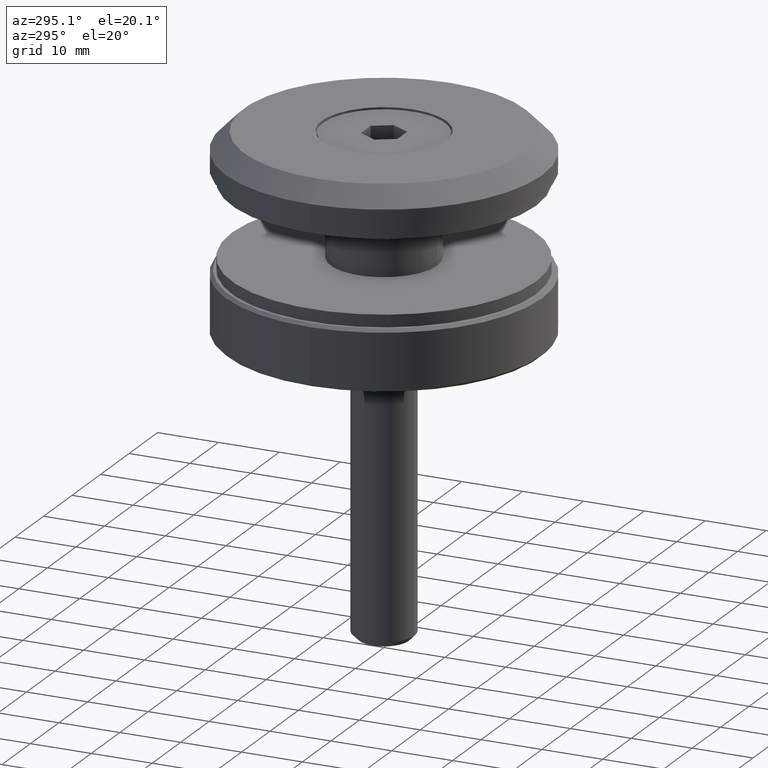
[diagram: clean part render]
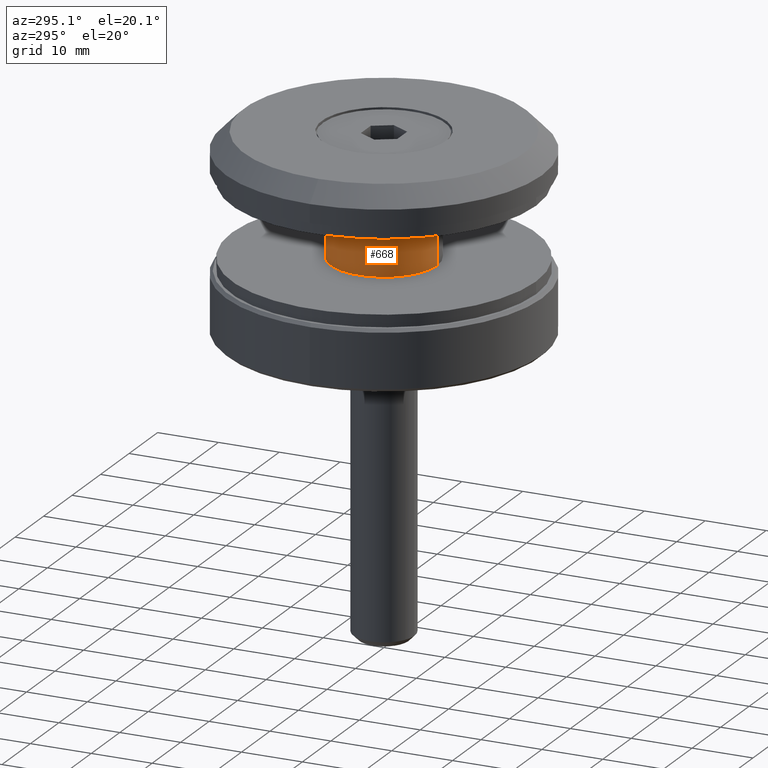
[diagram: same view with one face highlighted and labeled with its STEP entity id]
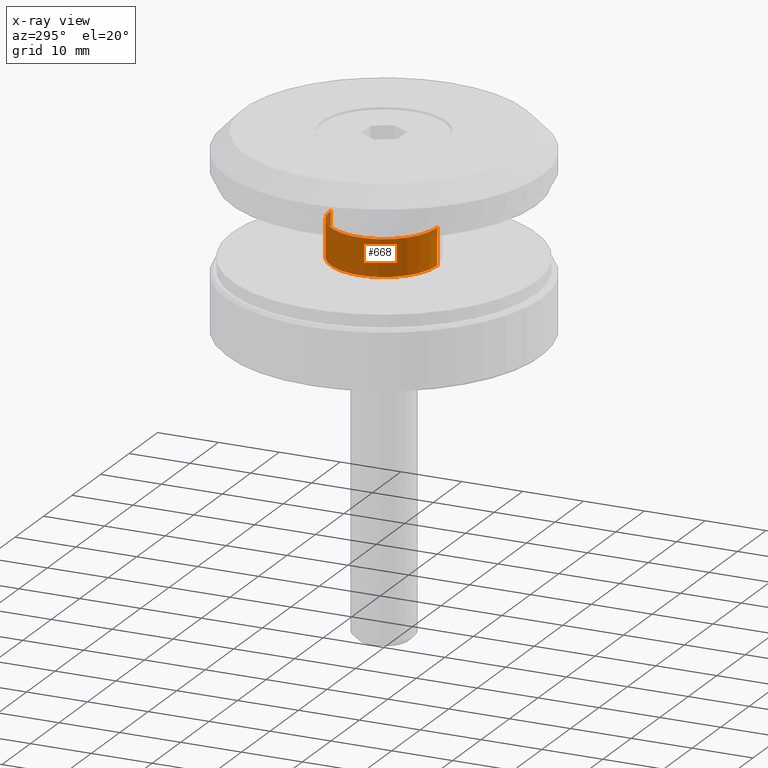
[diagram: x-ray of the same camera — body ghosted, the highlighted face saturated]
A machine part, auxiliary view. The second image highlights one B-rep face of the part: STEP entity #668.
The next image is the same camera in x-ray: the body ghosted, the highlighted face saturated — about 8% of this face is hidden behind the body in this view.
In plain terms, the highlighted cylindrical surface (partial cylindrical patch) has radius 8.75 mm, axis along (0, 0, -1).
Its self-contained STEP definition (entity closure, byte-faithful):
#668 = ADVANCED_FACE ( 'NONE', ( #8071 ), #12903, .T. ) ;
#748 = CIRCLE ( 'NONE', #14429, 8.750000000000001776 ) ;
#807 = CIRCLE ( 'NONE', #14029, 8.750000000000001776 ) ;
#1695 = LINE ( 'NONE', #2618, #15152 ) ;
#2618 = CARTESIAN_POINT ( 'NONE',  ( 0.000000000000000000, 3.000000000000002665, -8.750000000000001776 ) ) ;
#3574 = ORIENTED_EDGE ( 'NONE', *, *, #15708, .F. ) ;
#4571 = EDGE_CURVE ( 'NONE', #5178, #5265, #5599, .T. ) ;
#5178 = VERTEX_POINT ( 'NONE', #7032 ) ;
#5265 = VERTEX_POINT ( 'NONE', #12948 ) ;
#5287 = EDGE_CURVE ( 'NONE', #9016, #6171, #1695, .T. ) ;
#5461 = DIRECTION ( 'NONE',  ( 0.000000000000000000, 1.000000000000000000, 0.000000000000000000 ) ) ;
#5599 = LINE ( 'NONE', #12166, #6797 ) ;
#5767 = DIRECTION ( 'NONE',  ( 0.000000000000000000, -1.000000000000000000, 0.000000000000000000 ) ) ;
#6171 = VERTEX_POINT ( 'NONE', #7765 ) ;
#6527 = ORIENTED_EDGE ( 'NONE', *, *, #4571, .T. ) ;
#6639 = DIRECTION ( 'NONE',  ( 0.000000000000000000, 0.000000000000000000, -1.000000000000000000 ) ) ;
#6741 = DIRECTION ( 'NONE',  ( 0.000000000000000000, 0.000000000000000000, 1.000000000000000000 ) ) ;
#6797 = VECTOR ( 'NONE', #5767, 1000.000000000000000 ) ;
#7032 = CARTESIAN_POINT ( 'NONE',  ( 1.071565949253929391E-15, 3.000000000000002665, 8.750000000000001776 ) ) ;
#7452 = CARTESIAN_POINT ( 'NONE',  ( 0.000000000000000000, -3.000000000000002665, 0.000000000000000000 ) ) ;
#7507 = EDGE_CURVE ( 'NONE', #5265, #6171, #748, .T. ) ;
#7765 = CARTESIAN_POINT ( 'NONE',  ( 0.000000000000000000, -3.000000000000002665, -8.750000000000001776 ) ) ;
#8071 = FACE_OUTER_BOUND ( 'NONE', #12034, .T. ) ;
#9016 = VERTEX_POINT ( 'NONE', #16095 ) ;
#10453 = DIRECTION ( 'NONE',  ( 0.000000000000000000, -1.000000000000000000, 0.000000000000000000 ) ) ;
#10635 = ORIENTED_EDGE ( 'NONE', *, *, #5287, .F. ) ;
#11518 = CARTESIAN_POINT ( 'NONE',  ( 0.000000000000000000, 3.000000000000002665, 0.000000000000000000 ) ) ;
#11994 = CARTESIAN_POINT ( 'NONE',  ( 0.000000000000000000, 3.000000000000002665, 0.000000000000000000 ) ) ;
#12034 = EDGE_LOOP ( 'NONE', ( #3574, #6527, #14846, #10635 ) ) ;
#12166 = CARTESIAN_POINT ( 'NONE',  ( 1.071565949253929391E-15, 3.000000000000002665, 8.750000000000001776 ) ) ;
#12903 = CYLINDRICAL_SURFACE ( 'NONE', #14328, 8.750000000000001776 ) ;
#12948 = CARTESIAN_POINT ( 'NONE',  ( 1.071565949253929391E-15, -3.000000000000002665, 8.750000000000001776 ) ) ;
#14029 = AXIS2_PLACEMENT_3D ( 'NONE', #11518, #5461, #6741 ) ;
#14089 = DIRECTION ( 'NONE',  ( 0.000000000000000000, 0.000000000000000000, 1.000000000000000000 ) ) ;
#14328 = AXIS2_PLACEMENT_3D ( 'NONE', #11994, #10453, #6639 ) ;
#14429 = AXIS2_PLACEMENT_3D ( 'NONE', #7452, #16461, #14089 ) ;
#14846 = ORIENTED_EDGE ( 'NONE', *, *, #7507, .T. ) ;
#15152 = VECTOR ( 'NONE', #15715, 1000.000000000000000 ) ;
#15708 = EDGE_CURVE ( 'NONE', #5178, #9016, #807, .T. ) ;
#15715 = DIRECTION ( 'NONE',  ( 0.000000000000000000, -1.000000000000000000, 0.000000000000000000 ) ) ;
#16095 = CARTESIAN_POINT ( 'NONE',  ( 0.000000000000000000, 3.000000000000002665, -8.750000000000001776 ) ) ;
#16461 = DIRECTION ( 'NONE',  ( 0.000000000000000000, 1.000000000000000000, 0.000000000000000000 ) ) ;